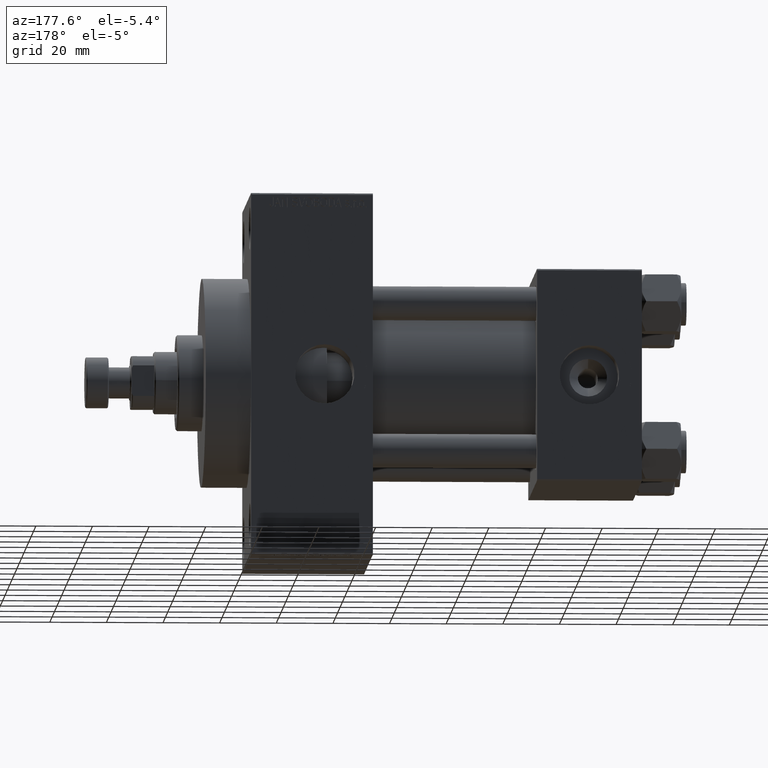
[diagram: clean part render]
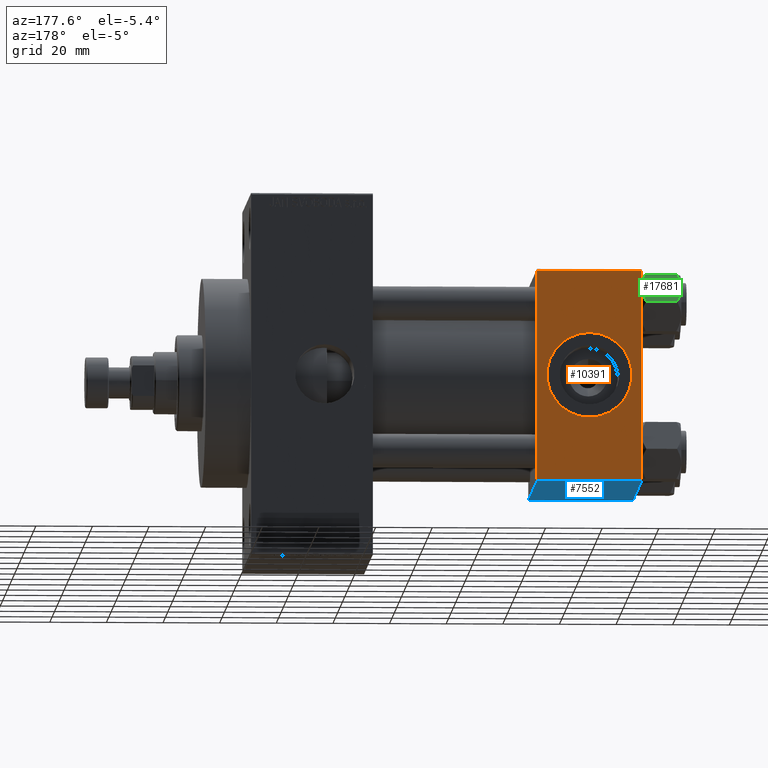
[diagram: same view with three faces highlighted in distinct colors, each labeled with its STEP entity id]
A machine part, auxiliary view with three faces highlighted in distinct colors.
Their STEP definitions:

[orange] entity #10391 — the highlighted planar face has unit normal (0, 1, 0).
#312 = VECTOR ( 'NONE', #30821, 1000.000000000000000 ) ;
#1561 = VECTOR ( 'NONE', #22807, 1000.000000000000000 ) ;
#2542 = VERTEX_POINT ( 'NONE', #30001 ) ;
#3419 = EDGE_CURVE ( 'NONE', #26139, #28212, #12774, .T. ) ;
#4319 = CARTESIAN_POINT ( 'NONE',  ( 37.00000000000000000, 37.49999999999999289, 37.00000000000000000 ) ) ;
#4893 = EDGE_CURVE ( 'NONE', #14075, #18557, #6151, .T. ) ;
#6151 = CIRCLE ( 'NONE', #32225, 15.00000000000000178 ) ;
#8607 = VECTOR ( 'NONE', #13251, 1000.000000000000000 ) ;
#8834 = CARTESIAN_POINT ( 'NONE',  ( 37.00000000000000000, 37.49999999999999289, -36.99999999999998579 ) ) ;
#8901 = LINE ( 'NONE', #38532, #312 ) ;
#9113 = ORIENTED_EDGE ( 'NONE', *, *, #18567, .F. ) ;
#9876 = EDGE_CURVE ( 'NONE', #28212, #2542, #19431, .T. ) ;
#10077 = AXIS2_PLACEMENT_3D ( 'NONE', #28512, #32372, #36679 ) ;
#10391 = ADVANCED_FACE ( 'NONE', ( #46839, #17904 ), #13827, .T. ) ;
#11729 = DIRECTION ( 'NONE',  ( 0.000000000000000000, 0.000000000000000000, 1.000000000000000000 ) ) ;
#12251 = ORIENTED_EDGE ( 'NONE', *, *, #3419, .T. ) ;
#12529 = CARTESIAN_POINT ( 'NONE',  ( 37.00000000000000000, 37.49999999999999289, 37.00000000000000000 ) ) ;
#12756 = CARTESIAN_POINT ( 'NONE',  ( 18.50000000000000355, 37.49999999999999289, -15.00000000000000178 ) ) ;
#12774 = LINE ( 'NONE', #13011, #22245 ) ;
#13011 = CARTESIAN_POINT ( 'NONE',  ( 37.00000000000000000, 37.49999999999999289, 37.50000000000000000 ) ) ;
#13251 = DIRECTION ( 'NONE',  ( 1.000000000000000000, 0.000000000000000000, 0.000000000000000000 ) ) ;
#13589 = CIRCLE ( 'NONE', #17433, 15.00000000000000178 ) ;
#13827 = PLANE ( 'NONE',  #10077 ) ;
#14075 = VERTEX_POINT ( 'NONE', #23054 ) ;
#15335 = DIRECTION ( 'NONE',  ( 0.000000000000000000, 1.000000000000000000, 0.000000000000000000 ) ) ;
#16851 = LINE ( 'NONE', #12529, #8607 ) ;
#17433 = AXIS2_PLACEMENT_3D ( 'NONE', #40524, #44398, #28980 ) ;
#17679 = ORIENTED_EDGE ( 'NONE', *, *, #25716, .F. ) ;
#17904 = FACE_OUTER_BOUND ( 'NONE', #37207, .T. ) ;
#18557 = VERTEX_POINT ( 'NONE', #12756 ) ;
#18567 = EDGE_CURVE ( 'NONE', #36512, #2542, #8901, .T. ) ;
#19431 = LINE ( 'NONE', #8834, #1561 ) ;
#22245 = VECTOR ( 'NONE', #42166, 1000.000000000000000 ) ;
#22807 = DIRECTION ( 'NONE',  ( -1.000000000000000000, 0.000000000000000000, 0.000000000000000000 ) ) ;
#23054 = CARTESIAN_POINT ( 'NONE',  ( 18.50000000000000000, 37.49999999999999289, 15.00000000000000178 ) ) ;
#25716 = EDGE_CURVE ( 'NONE', #18557, #14075, #13589, .T. ) ;
#26139 = VERTEX_POINT ( 'NONE', #4319 ) ;
#28212 = VERTEX_POINT ( 'NONE', #44386 ) ;
#28512 = CARTESIAN_POINT ( 'NONE',  ( 37.00000000000000000, 37.49999999999999289, 37.50000000000000000 ) ) ;
#28751 = ORIENTED_EDGE ( 'NONE', *, *, #9876, .T. ) ;
#28980 = DIRECTION ( 'NONE',  ( 0.000000000000000000, 0.000000000000000000, 1.000000000000000000 ) ) ;
#30001 = CARTESIAN_POINT ( 'NONE',  ( 0.000000000000000000, 37.49999999999999289, -36.99999999999998579 ) ) ;
#30776 = CARTESIAN_POINT ( 'NONE',  ( 0.000000000000000000, 37.49999999999999289, 37.00000000000000000 ) ) ;
#30821 = DIRECTION ( 'NONE',  ( 0.000000000000000000, 0.000000000000000000, -1.000000000000000000 ) ) ;
#32079 = EDGE_LOOP ( 'NONE', ( #41907, #17679 ) ) ;
#32225 = AXIS2_PLACEMENT_3D ( 'NONE', #34364, #15335, #11729 ) ;
#32372 = DIRECTION ( 'NONE',  ( -0.000000000000000000, 1.000000000000000000, 0.000000000000000000 ) ) ;
#34364 = CARTESIAN_POINT ( 'NONE',  ( 18.50000000000000000, 37.49999999999999289, 0.000000000000000000 ) ) ;
#36512 = VERTEX_POINT ( 'NONE', #30776 ) ;
#36679 = DIRECTION ( 'NONE',  ( 0.000000000000000000, -0.000000000000000000, 1.000000000000000000 ) ) ;
#37207 = EDGE_LOOP ( 'NONE', ( #12251, #28751, #9113, #44534 ) ) ;
#38532 = CARTESIAN_POINT ( 'NONE',  ( 0.000000000000000000, 37.49999999999999289, 37.50000000000000000 ) ) ;
#40524 = CARTESIAN_POINT ( 'NONE',  ( 18.50000000000000000, 37.49999999999999289, 0.000000000000000000 ) ) ;
#41907 = ORIENTED_EDGE ( 'NONE', *, *, #4893, .F. ) ;
#42120 = EDGE_CURVE ( 'NONE', #36512, #26139, #16851, .T. ) ;
#42166 = DIRECTION ( 'NONE',  ( 0.000000000000000000, 0.000000000000000000, -1.000000000000000000 ) ) ;
#44386 = CARTESIAN_POINT ( 'NONE',  ( 37.00000000000000000, 37.49999999999999289, -36.99999999999998579 ) ) ;
#44398 = DIRECTION ( 'NONE',  ( 0.000000000000000000, 1.000000000000000000, 0.000000000000000000 ) ) ;
#44534 = ORIENTED_EDGE ( 'NONE', *, *, #42120, .T. ) ;
#46839 = FACE_BOUND ( 'NONE', #32079, .T. ) ;

[blue] entity #7552 — the highlighted planar face has unit normal (0, 0, -1).
#980 = CARTESIAN_POINT ( 'NONE',  ( 0.000000000000000000, -37.00000000000002132, -37.50000000000000711 ) ) ;
#2376 = VERTEX_POINT ( 'NONE', #22425 ) ;
#5176 = DIRECTION ( 'NONE',  ( 0.000000000000000000, 1.000000000000000000, 9.251858538542972814E-17 ) ) ;
#5675 = LINE ( 'NONE', #9772, #20005 ) ;
#6864 = AXIS2_PLACEMENT_3D ( 'NONE', #12418, #19648, #5176 ) ;
#7552 = ADVANCED_FACE ( 'NONE', ( #8316 ), #38428, .T. ) ;
#8316 = FACE_OUTER_BOUND ( 'NONE', #33192, .T. ) ;
#9772 = CARTESIAN_POINT ( 'NONE',  ( 37.00000000000000000, 36.99999999999997868, -37.50000000000000000 ) ) ;
#12298 = EDGE_CURVE ( 'NONE', #2376, #24954, #45073, .T. ) ;
#12418 = CARTESIAN_POINT ( 'NONE',  ( 37.00000000000000000, 37.49999999999999289, -37.50000000000000000 ) ) ;
#14857 = VERTEX_POINT ( 'NONE', #20043 ) ;
#19648 = DIRECTION ( 'NONE',  ( 0.000000000000000000, 9.251858538542972814E-17, -1.000000000000000000 ) ) ;
#20005 = VECTOR ( 'NONE', #24463, 1000.000000000000000 ) ;
#20043 = CARTESIAN_POINT ( 'NONE',  ( 0.000000000000000000, 36.99999999999997868, -37.50000000000000000 ) ) ;
#21152 = VECTOR ( 'NONE', #37592, 1000.000000000000000 ) ;
#22425 = CARTESIAN_POINT ( 'NONE',  ( 37.00000000000000000, -37.00000000000002132, -37.50000000000000711 ) ) ;
#22653 = CARTESIAN_POINT ( 'NONE',  ( 0.000000000000000000, 37.49999999999999289, -37.50000000000000000 ) ) ;
#22946 = EDGE_CURVE ( 'NONE', #32667, #2376, #47509, .T. ) ;
#23977 = ORIENTED_EDGE ( 'NONE', *, *, #33853, .T. ) ;
#24463 = DIRECTION ( 'NONE',  ( 1.000000000000000000, 0.000000000000000000, 0.000000000000000000 ) ) ;
#24954 = VERTEX_POINT ( 'NONE', #980 ) ;
#25501 = VECTOR ( 'NONE', #37355, 1000.000000000000000 ) ;
#26692 = CARTESIAN_POINT ( 'NONE',  ( 37.00000000000000000, 36.99999999999997868, -37.50000000000000000 ) ) ;
#29652 = CARTESIAN_POINT ( 'NONE',  ( 0.000000000000000000, -37.00000000000002132, -37.50000000000000711 ) ) ;
#32667 = VERTEX_POINT ( 'NONE', #26692 ) ;
#32883 = ORIENTED_EDGE ( 'NONE', *, *, #12298, .T. ) ;
#33192 = EDGE_LOOP ( 'NONE', ( #39400, #23977, #41588, #32883 ) ) ;
#33853 = EDGE_CURVE ( 'NONE', #14857, #32667, #5675, .T. ) ;
#35253 = EDGE_CURVE ( 'NONE', #14857, #24954, #40950, .T. ) ;
#36958 = VECTOR ( 'NONE', #37345, 1000.000000000000000 ) ;
#37345 = DIRECTION ( 'NONE',  ( 0.000000000000000000, -1.000000000000000000, -9.251858538542972814E-17 ) ) ;
#37355 = DIRECTION ( 'NONE',  ( -1.000000000000000000, 0.000000000000000000, 0.000000000000000000 ) ) ;
#37592 = DIRECTION ( 'NONE',  ( 0.000000000000000000, -1.000000000000000000, -9.251858538542972814E-17 ) ) ;
#38428 = PLANE ( 'NONE',  #6864 ) ;
#39400 = ORIENTED_EDGE ( 'NONE', *, *, #35253, .F. ) ;
#40950 = LINE ( 'NONE', #22653, #36958 ) ;
#41588 = ORIENTED_EDGE ( 'NONE', *, *, #22946, .T. ) ;
#43896 = CARTESIAN_POINT ( 'NONE',  ( 37.00000000000000000, 37.49999999999999289, -37.50000000000000000 ) ) ;
#45073 = LINE ( 'NONE', #29652, #25501 ) ;
#47509 = LINE ( 'NONE', #43896, #21152 ) ;

[green] entity #17681 — the highlighted planar face has unit normal (0, -0.866, -0.5).
#124 = CARTESIAN_POINT ( 'NONE',  ( 5.810000000000000497, -10.06321519197517667, -12.44321519197518811 ) ) ;
#2169 = CARTESIAN_POINT ( 'NONE',  ( 5.810000000000000497, -10.06321519197517667, -1.556784808024811895 ) ) ;
#2228 = CARTESIAN_POINT ( 'NONE',  ( 5.810000000000000497, -10.06321519197517667, -12.44321519197518811 ) ) ;
#3590 = CARTESIAN_POINT ( 'NONE',  ( 7.700834831386344170, -6.788193195293096061, -0.1903979688073396681 ) ) ;
#3935 = CARTESIAN_POINT ( 'NONE',  ( 8.715000000000003411, -5.031607595987592774, -14.00000000000000000 ) ) ;
#5076 = B_SPLINE_CURVE_WITH_KNOTS ( 'NONE', 3,
 ( #26644, #19176, #12184, #8097, #33878, #2228 ),
 .UNSPECIFIED., .F., .F.,
 ( 4, 2, 4 ),
 ( 0.006022845781655588975, 0.009013049135303631554, 0.01200325248895167674 ),
 .UNSPECIFIED. ) ;
#5440 = ORIENTED_EDGE ( 'NONE', *, *, #34151, .F. ) ;
#5449 = CARTESIAN_POINT ( 'NONE',  ( 9.220295946303432189, -4.156409344131454020, 3.521962994683380021E-15 ) ) ;
#5852 = CARTESIAN_POINT ( 'NONE',  ( 8.969430103550381617, -4.590921729663316242, -14.00000000000000178 ) ) ;
#6868 = VERTEX_POINT ( 'NONE', #24206 ) ;
#6984 = VECTOR ( 'NONE', #32946, 1000.000000000000000 ) ;
#8097 = CARTESIAN_POINT ( 'NONE',  ( 6.733375043383495573, -8.463882702393842550, -13.28854452935654962 ) ) ;
#8405 = PLANE ( 'NONE',  #27227 ) ;
#9477 = CARTESIAN_POINT ( 'NONE',  ( 11.62000000000000099, -1.689012838886770227E-15, -12.44321519197518633 ) ) ;
#10027 = VERTEX_POINT ( 'NONE', #12690 ) ;
#10444 = ORIENTED_EDGE ( 'NONE', *, *, #47659, .F. ) ;
#10835 = CARTESIAN_POINT ( 'NONE',  ( 8.460569896449618099, -5.472293462311865753, 3.427848222766236415E-15 ) ) ;
#12184 = CARTESIAN_POINT ( 'NONE',  ( 7.713000053756305263, -6.767122412062954062, -13.84547602999601956 ) ) ;
#12509 = EDGE_CURVE ( 'NONE', #6868, #42195, #24710, .T. ) ;
#12690 = CARTESIAN_POINT ( 'NONE',  ( 5.810000000000000497, -10.06321519197517667, -1.556784808024811895 ) ) ;
#13336 = CARTESIAN_POINT ( 'NONE',  ( 9.974696630283190757, -2.849749030213793777, -13.69973261901325934 ) ) ;
#15975 = ORIENTED_EDGE ( 'NONE', *, *, #39823, .F. ) ;
#16348 = DIRECTION ( 'NONE',  ( -0.5000000000000001110, -0.8660254037844384856, 0.000000000000000000 ) ) ;
#17010 = CARTESIAN_POINT ( 'NONE',  ( 8.715000000000003411, -5.031607595987592774, 0.000000000000000000 ) ) ;
#17400 = FACE_OUTER_BOUND ( 'NONE', #22101, .T. ) ;
#17481 = CARTESIAN_POINT ( 'NONE',  ( 11.62000000000000099, -1.813166800014576593E-15, -14.00000000000000000 ) ) ;
#17681 = ADVANCED_FACE ( 'NONE', ( #17400 ), #8405, .F. ) ;
#18177 = DIRECTION ( 'NONE',  ( -0.000000000000000000, -0.000000000000000000, 1.000000000000000000 ) ) ;
#18295 = CARTESIAN_POINT ( 'NONE',  ( 8.202333004087897450, -5.919572880271052995, -0.03994118060690592109 ) ) ;
#18747 = B_SPLINE_CURVE_WITH_KNOTS ( 'NONE', 3,
 ( #2169, #39287, #20983, #35682, #3590, #18295, #10835, #32993 ),
 .UNSPECIFIED., .F., .F.,
 ( 4, 2, 2, 4 ),
 ( 2.544312114902182352E-07, 0.003011550106433539056, 0.004517197944044561847, 0.006022845781655586372 ),
 .UNSPECIFIED. ) ;
#18978 = ORIENTED_EDGE ( 'NONE', *, *, #39944, .F. ) ;
#19176 = CARTESIAN_POINT ( 'NONE',  ( 8.209704053696569304, -5.906805847843727086, -14.00000000000000178 ) ) ;
#19608 = CARTESIAN_POINT ( 'NONE',  ( 11.16445427487472131, -0.7890283410877986237, -12.89876091710047135 ) ) ;
#20983 = CARTESIAN_POINT ( 'NONE',  ( 6.731401448974991375, -8.467301068182914392, -0.7141438259524641730 ) ) ;
#22101 = EDGE_LOOP ( 'NONE', ( #5440, #31915, #10444, #15975, #18978, #23580 ) ) ;
#23113 = CARTESIAN_POINT ( 'NONE',  ( 11.62000000000000099, -1.813166800014576593E-15, -14.00000000000000000 ) ) ;
#23283 = CARTESIAN_POINT ( 'NONE',  ( 11.62000000000000099, -1.924525737834042474E-15, -1.556784808024813893 ) ) ;
#23468 = VERTEX_POINT ( 'NONE', #124 ) ;
#23580 = ORIENTED_EDGE ( 'NONE', *, *, #29879, .F. ) ;
#24169 = CARTESIAN_POINT ( 'NONE',  ( 8.715000000000003411, -5.031607595987592774, -14.00000000000000000 ) ) ;
#24206 = CARTESIAN_POINT ( 'NONE',  ( 11.62000000000000099, -1.689012838886770227E-15, -12.44321519197518633 ) ) ;
#24710 = LINE ( 'NONE', #17481, #44782 ) ;
#25963 = B_SPLINE_CURVE_WITH_KNOTS ( 'NONE', 3,
 ( #9477, #19608, #27539, #13336, #34534, #38386, #5852, #24169 ),
 .UNSPECIFIED., .F., .F.,
 ( 4, 2, 2, 4 ),
 ( 2.544312114904007178E-07, 0.003011550106433541225, 0.004517197944044565316, 0.006022845781655588975 ),
 .UNSPECIFIED. ) ;
#26449 = CARTESIAN_POINT ( 'NONE',  ( 8.715000000000003411, -5.031607595987592774, 0.000000000000000000 ) ) ;
#26644 = CARTESIAN_POINT ( 'NONE',  ( 8.715000000000003411, -5.031607595987592774, -14.00000000000000000 ) ) ;
#27227 = AXIS2_PLACEMENT_3D ( 'NONE', #23113, #37801, #16348 ) ;
#27376 = CARTESIAN_POINT ( 'NONE',  ( 9.716999946243698005, -3.296092779912227932, -0.1545239700039822972 ) ) ;
#27539 = CARTESIAN_POINT ( 'NONE',  ( 10.69859855102500923, -1.595914123792265160, -13.28585617404753627 ) ) ;
#29093 = LINE ( 'NONE', #43803, #6984 ) ;
#29113 = CARTESIAN_POINT ( 'NONE',  ( 11.62000000000000099, -1.924525737834042474E-15, -1.556784808024813893 ) ) ;
#29879 = EDGE_CURVE ( 'NONE', #37622, #23468, #5076, .T. ) ;
#29910 = B_SPLINE_CURVE_WITH_KNOTS ( 'NONE', 3,
 ( #17010, #5449, #27376, #38938, #45461, #23283 ),
 .UNSPECIFIED., .F., .F.,
 ( 4, 2, 4 ),
 ( 0.006022845781655586372, 0.009013049135303633289, 0.01200325248895168020 ),
 .UNSPECIFIED. ) ;
#31915 = ORIENTED_EDGE ( 'NONE', *, *, #12509, .T. ) ;
#32946 = DIRECTION ( 'NONE',  ( -0.000000000000000000, -0.000000000000000000, 1.000000000000000000 ) ) ;
#32993 = CARTESIAN_POINT ( 'NONE',  ( 8.715000000000003411, -5.031607595987592774, 0.000000000000000000 ) ) ;
#33878 = CARTESIAN_POINT ( 'NONE',  ( 6.265018354709780191, -9.275100283241448196, -12.89823354668505395 ) ) ;
#34151 = EDGE_CURVE ( 'NONE', #6868, #37622, #25963, .T. ) ;
#34534 = CARTESIAN_POINT ( 'NONE',  ( 9.729165168613651105, -3.275021996682085046, -13.80960203119265906 ) ) ;
#35682 = CARTESIAN_POINT ( 'NONE',  ( 7.455303369716807182, -7.213466161761383333, -0.3002673809867365540 ) ) ;
#37622 = VERTEX_POINT ( 'NONE', #3935 ) ;
#37801 = DIRECTION ( 'NONE',  ( -0.8660254037844385966, 0.5000000000000002220, 0.000000000000000000 ) ) ;
#38386 = CARTESIAN_POINT ( 'NONE',  ( 9.227666995912100489, -4.143642311704125447, -13.96005881939309212 ) ) ;
#38938 = CARTESIAN_POINT ( 'NONE',  ( 10.69662495661650503, -1.599332489581334560, -0.7114554706434483844 ) ) ;
#39287 = CARTESIAN_POINT ( 'NONE',  ( 6.265545725125285514, -9.274186850887382150, -1.101239082899530430 ) ) ;
#39823 = EDGE_CURVE ( 'NONE', #10027, #41342, #18747, .T. ) ;
#39944 = EDGE_CURVE ( 'NONE', #23468, #10027, #29093, .T. ) ;
#41342 = VERTEX_POINT ( 'NONE', #26449 ) ;
#42195 = VERTEX_POINT ( 'NONE', #29113 ) ;
#43803 = CARTESIAN_POINT ( 'NONE',  ( 5.810000000000000497, -10.06321519197517667, -14.00000000000000000 ) ) ;
#44782 = VECTOR ( 'NONE', #18177, 1000.000000000000000 ) ;
#45461 = CARTESIAN_POINT ( 'NONE',  ( 11.16498164529022574, -0.7881149087337312453, -1.101766453314952487 ) ) ;
#47659 = EDGE_CURVE ( 'NONE', #41342, #42195, #29910, .T. ) ;